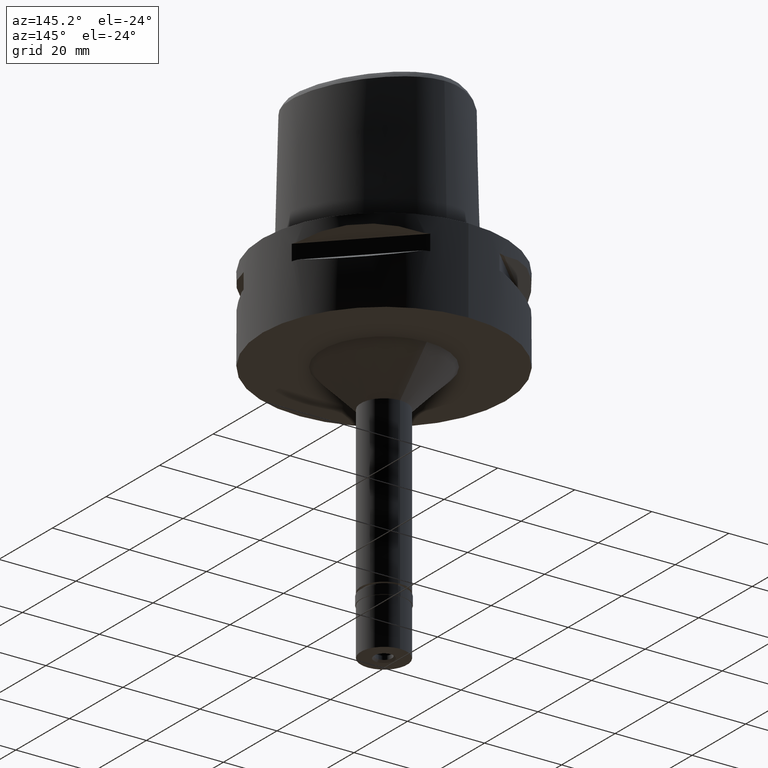
[diagram: clean part render]
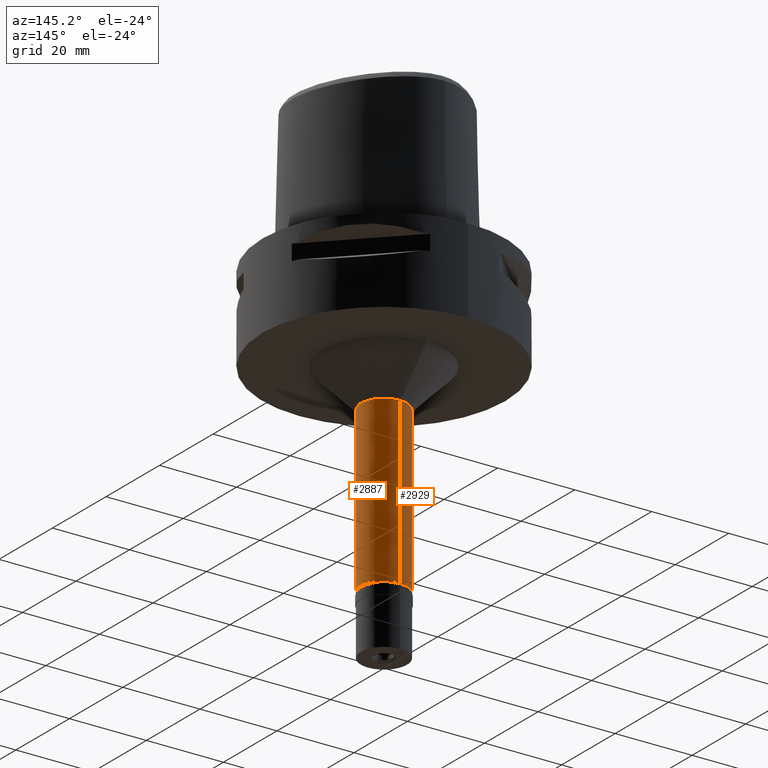
[diagram: same view with one multi-face feature highlighted, each face labeled with its STEP entity id]
A machine part, auxiliary view. The highlighted faces form ONE feature: a constant-radius fillet chain: 2 tangent blend faces with common blend radius 6 mm. The faces share edges in the B-rep.
Their STEP definitions:
[1] entity #2887 (Cylinder):
#190 = ORIENTED_EDGE ( 'NONE', *, *, #2655, .T. ) ;
#329 = DIRECTION ( 'NONE',  ( 0.0000000000000000000, 0.0000000000000000000, -1.000000000000000000 ) ) ;
#397 = CYLINDRICAL_SURFACE ( 'NONE', #2516, 6.000000000000000000 ) ;
#443 = EDGE_CURVE ( 'NONE', #971, #4697, #2359, .T. ) ;
#971 = VERTEX_POINT ( 'NONE', #4243 ) ;
#1093 = LINE ( 'NONE', #2254, #4188 ) ;
#1159 = LINE ( 'NONE', #2340, #4194 ) ;
#1251 = DIRECTION ( 'NONE',  ( 0.0000000000000000000, 0.0000000000000000000, -1.000000000000000000 ) ) ;
#1671 = DIRECTION ( 'NONE',  ( 0.0000000000000000000, -1.000000000000000000, 0.0000000000000000000 ) ) ;
#1842 = DIRECTION ( 'NONE',  ( 0.0000000000000000000, 1.000000000000000000, 0.0000000000000000000 ) ) ;
#1858 = FACE_OUTER_BOUND ( 'NONE', #4322, .T. ) ;
#2171 = DIRECTION ( 'NONE',  ( 0.0000000000000000000, 0.0000000000000000000, 1.000000000000000000 ) ) ;
#2254 = CARTESIAN_POINT ( 'NONE',  ( 0.0000000000000000000, 6.000000000000000000, -32.00000000000000000 ) ) ;
#2340 = CARTESIAN_POINT ( 'NONE',  ( 0.0000000000000000000, -6.000000000000000000, -32.00000000000000000 ) ) ;
#2359 = CIRCLE ( 'NONE', #3225, 6.000000000000000000 ) ;
#2393 = VERTEX_POINT ( 'NONE', #2473 ) ;
#2415 = ORIENTED_EDGE ( 'NONE', *, *, #4205, .T. ) ;
#2473 = CARTESIAN_POINT ( 'NONE',  ( 0.0000000000000000000, -6.000000000000000000, -74.80000000000001137 ) ) ;
#2516 = AXIS2_PLACEMENT_3D ( 'NONE', #3030, #2623, #1671 ) ;
#2518 = VERTEX_POINT ( 'NONE', #3047 ) ;
#2623 = DIRECTION ( 'NONE',  ( 0.0000000000000000000, 0.0000000000000000000, -1.000000000000000000 ) ) ;
#2655 = EDGE_CURVE ( 'NONE', #4697, #2393, #1159, .T. ) ;
#2667 = DIRECTION ( 'NONE',  ( 0.0000000000000000000, 0.0000000000000000000, -1.000000000000000000 ) ) ;
#2756 = CIRCLE ( 'NONE', #4676, 6.000000000000000000 ) ;
#2783 = EDGE_CURVE ( 'NONE', #971, #2518, #1093, .T. ) ;
#2887 = ADVANCED_FACE ( 'NONE', ( #1858 ), #397, .T. ) ;
#3030 = CARTESIAN_POINT ( 'NONE',  ( 0.0000000000000000000, 1.277306611510999858E-14, 4.299999999999999822 ) ) ;
#3047 = CARTESIAN_POINT ( 'NONE',  ( 0.0000000000000000000, 6.000000000000000000, -74.80000000000001137 ) ) ;
#3116 = CARTESIAN_POINT ( 'NONE',  ( 0.0000000000000000000, -6.000000000000000000, -32.00000000000000000 ) ) ;
#3145 = ORIENTED_EDGE ( 'NONE', *, *, #443, .T. ) ;
#3225 = AXIS2_PLACEMENT_3D ( 'NONE', #3700, #329, #1842 ) ;
#3687 = DIRECTION ( 'NONE',  ( 0.0000000000000000000, -1.000000000000000000, 0.0000000000000000000 ) ) ;
#3700 = CARTESIAN_POINT ( 'NONE',  ( 0.0000000000000000000, 0.0000000000000000000, -32.00000000000000000 ) ) ;
#4011 = CARTESIAN_POINT ( 'NONE',  ( 0.0000000000000000000, 1.277306611510999858E-14, -74.80000000000001137 ) ) ;
#4188 = VECTOR ( 'NONE', #2667, 1000.000000000000000 ) ;
#4194 = VECTOR ( 'NONE', #1251, 1000.000000000000000 ) ;
#4205 = EDGE_CURVE ( 'NONE', #2393, #2518, #2756, .T. ) ;
#4243 = CARTESIAN_POINT ( 'NONE',  ( 0.0000000000000000000, 6.000000000000000000, -32.00000000000000000 ) ) ;
#4322 = EDGE_LOOP ( 'NONE', ( #3145, #190, #2415, #4605 ) ) ;
#4605 = ORIENTED_EDGE ( 'NONE', *, *, #2783, .F. ) ;
#4676 = AXIS2_PLACEMENT_3D ( 'NONE', #4011, #2171, #3687 ) ;
#4697 = VERTEX_POINT ( 'NONE', #3116 ) ;
[2] entity #2929 (Cylinder):
#490 = FACE_OUTER_BOUND ( 'NONE', #555, .T. ) ;
#513 = CYLINDRICAL_SURFACE ( 'NONE', #1421, 6.000000000000000000 ) ;
#555 = EDGE_LOOP ( 'NONE', ( #3716, #1603, #3906, #1444 ) ) ;
#556 = AXIS2_PLACEMENT_3D ( 'NONE', #2559, #3018, #3685 ) ;
#971 = VERTEX_POINT ( 'NONE', #4243 ) ;
#1093 = LINE ( 'NONE', #2254, #4188 ) ;
#1159 = LINE ( 'NONE', #2340, #4194 ) ;
#1251 = DIRECTION ( 'NONE',  ( 0.0000000000000000000, 0.0000000000000000000, -1.000000000000000000 ) ) ;
#1279 = CARTESIAN_POINT ( 'NONE',  ( 0.0000000000000000000, 0.0000000000000000000, -32.00000000000000000 ) ) ;
#1421 = AXIS2_PLACEMENT_3D ( 'NONE', #3168, #2320, #3516 ) ;
#1444 = ORIENTED_EDGE ( 'NONE', *, *, #2783, .T. ) ;
#1603 = ORIENTED_EDGE ( 'NONE', *, *, #2655, .F. ) ;
#2254 = CARTESIAN_POINT ( 'NONE',  ( 0.0000000000000000000, 6.000000000000000000, -32.00000000000000000 ) ) ;
#2284 = CIRCLE ( 'NONE', #2919, 6.000000000000000000 ) ;
#2294 = CIRCLE ( 'NONE', #556, 6.000000000000000000 ) ;
#2320 = DIRECTION ( 'NONE',  ( 0.0000000000000000000, 0.0000000000000000000, -1.000000000000000000 ) ) ;
#2340 = CARTESIAN_POINT ( 'NONE',  ( 0.0000000000000000000, -6.000000000000000000, -32.00000000000000000 ) ) ;
#2393 = VERTEX_POINT ( 'NONE', #2473 ) ;
#2473 = CARTESIAN_POINT ( 'NONE',  ( 0.0000000000000000000, -6.000000000000000000, -74.80000000000001137 ) ) ;
#2518 = VERTEX_POINT ( 'NONE', #3047 ) ;
#2559 = CARTESIAN_POINT ( 'NONE',  ( 0.0000000000000000000, 1.277306611510999858E-14, -74.80000000000001137 ) ) ;
#2655 = EDGE_CURVE ( 'NONE', #4697, #2393, #1159, .T. ) ;
#2667 = DIRECTION ( 'NONE',  ( 0.0000000000000000000, 0.0000000000000000000, -1.000000000000000000 ) ) ;
#2783 = EDGE_CURVE ( 'NONE', #971, #2518, #1093, .T. ) ;
#2919 = AXIS2_PLACEMENT_3D ( 'NONE', #1279, #4263, #4239 ) ;
#2929 = ADVANCED_FACE ( 'NONE', ( #490 ), #513, .T. ) ;
#2946 = EDGE_CURVE ( 'NONE', #4697, #971, #2284, .T. ) ;
#3018 = DIRECTION ( 'NONE',  ( 0.0000000000000000000, 0.0000000000000000000, 1.000000000000000000 ) ) ;
#3047 = CARTESIAN_POINT ( 'NONE',  ( 0.0000000000000000000, 6.000000000000000000, -74.80000000000001137 ) ) ;
#3116 = CARTESIAN_POINT ( 'NONE',  ( 0.0000000000000000000, -6.000000000000000000, -32.00000000000000000 ) ) ;
#3168 = CARTESIAN_POINT ( 'NONE',  ( 0.0000000000000000000, 1.277306611510999858E-14, 4.299999999999999822 ) ) ;
#3516 = DIRECTION ( 'NONE',  ( 0.0000000000000000000, -1.000000000000000000, 0.0000000000000000000 ) ) ;
#3685 = DIRECTION ( 'NONE',  ( 0.0000000000000000000, 1.000000000000000000, 0.0000000000000000000 ) ) ;
#3716 = ORIENTED_EDGE ( 'NONE', *, *, #4905, .T. ) ;
#3906 = ORIENTED_EDGE ( 'NONE', *, *, #2946, .T. ) ;
#4188 = VECTOR ( 'NONE', #2667, 1000.000000000000000 ) ;
#4194 = VECTOR ( 'NONE', #1251, 1000.000000000000000 ) ;
#4239 = DIRECTION ( 'NONE',  ( 0.0000000000000000000, -1.000000000000000000, 0.0000000000000000000 ) ) ;
#4243 = CARTESIAN_POINT ( 'NONE',  ( 0.0000000000000000000, 6.000000000000000000, -32.00000000000000000 ) ) ;
#4263 = DIRECTION ( 'NONE',  ( 0.0000000000000000000, 0.0000000000000000000, -1.000000000000000000 ) ) ;
#4697 = VERTEX_POINT ( 'NONE', #3116 ) ;
#4905 = EDGE_CURVE ( 'NONE', #2518, #2393, #2294, .T. ) ;